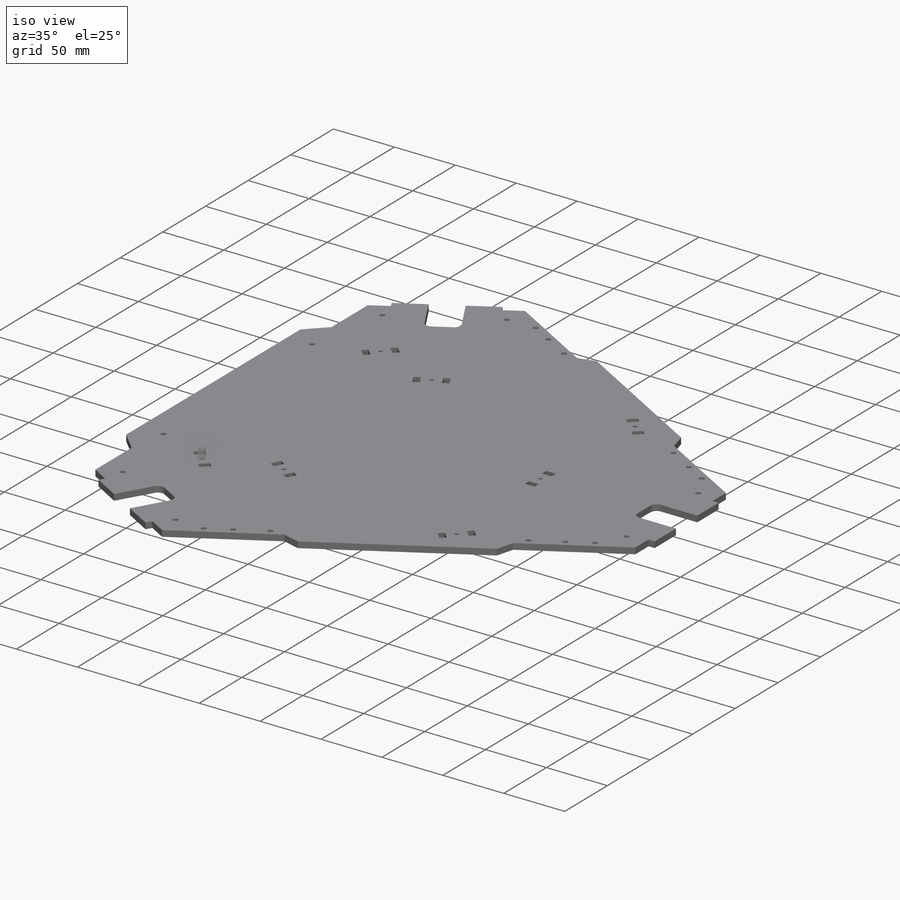
[diagram: iso view]
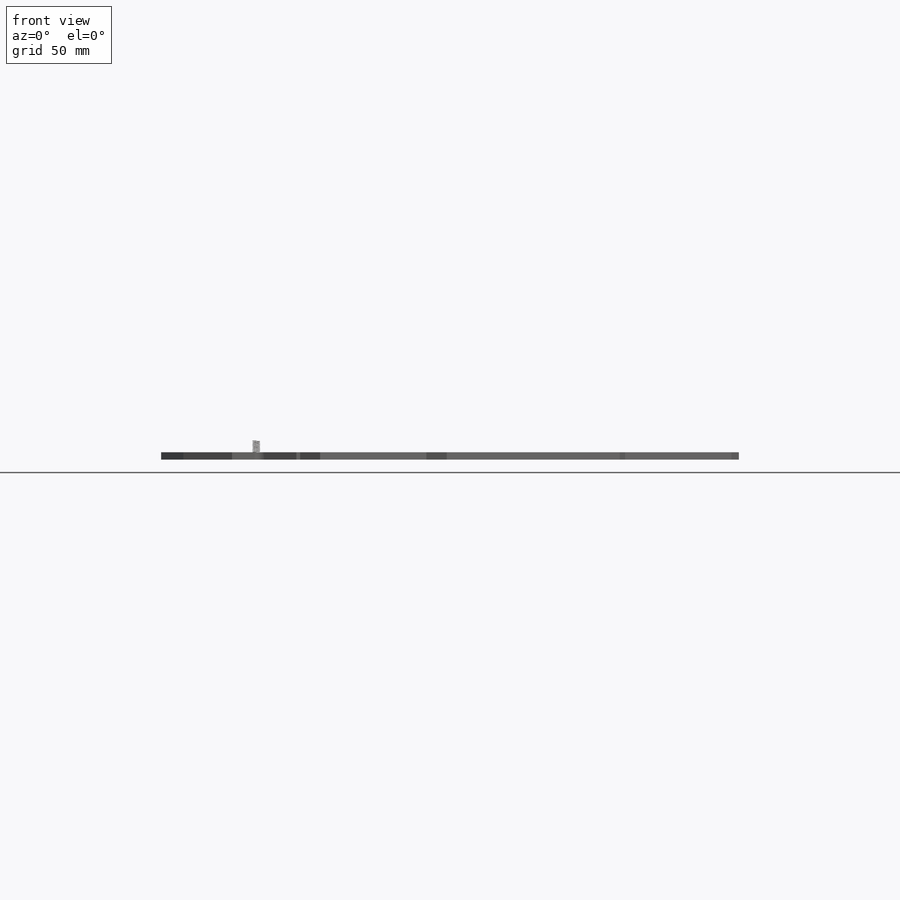
[diagram: front view]
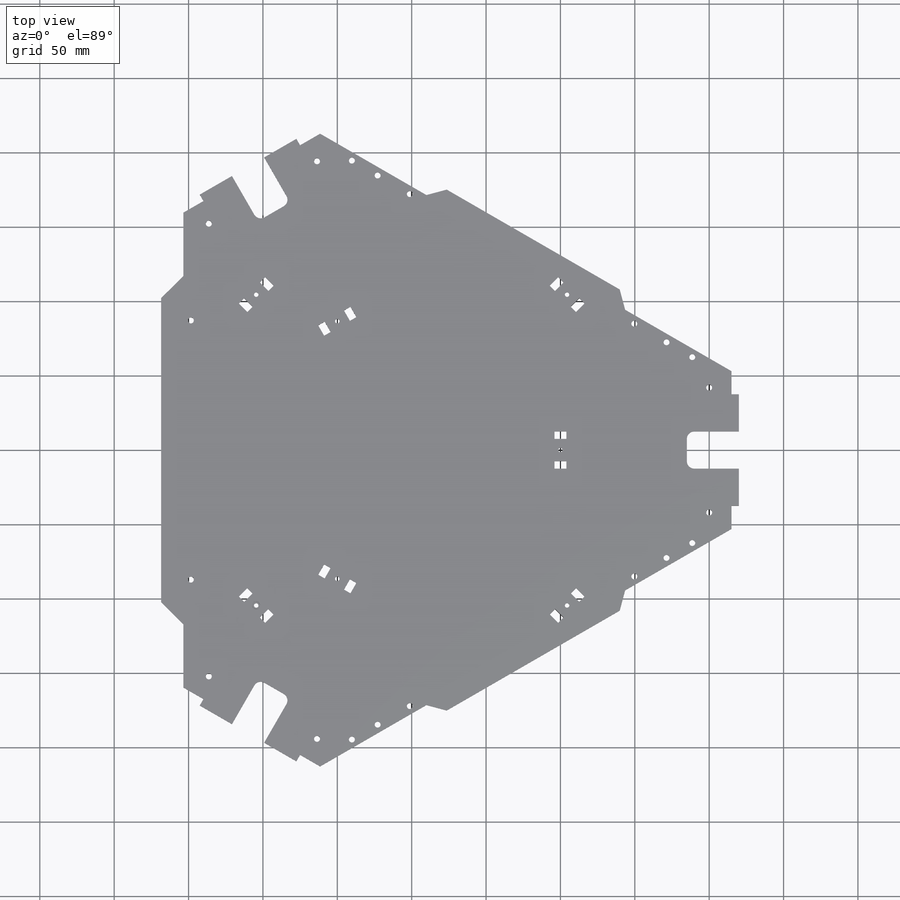
[diagram: top view]
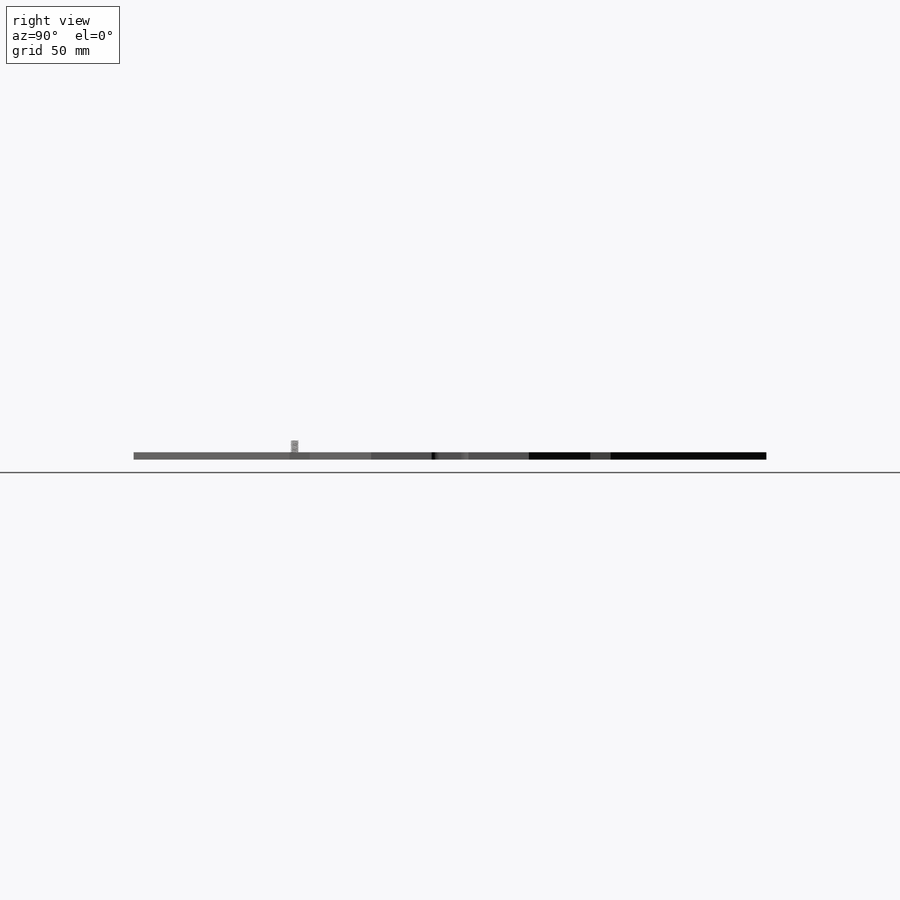
[diagram: right view]
SOLIDWORKS PART (.sldprt)
format: sldprt  version: not decoded by parser v0  size: 1,726,464 bytes
history: native  units: mm
features: sketch x20, extrude x12, cut_extrude x6, mirror x4, chamfer x3, material x1, boolean_combine x1, helix x1, sweep x1, fillet x1 (+16 scaffold rows collapsed; 4 parser-record rows omitted)
feature tree (70):
  scaffold x16  (default folders/planes/origin — collapsed)
  material  "Material <not specified>"
  mirror  "Mirror1"
  mirror  "Mirror2"
  mirror  "Mirror3"
  boolean_combine  "Combine2"
  sketch  "Sketch2"  dims[D4=3.0mm D1=214.0mm D2=214.0mm D3=209.0mm D5=209.0mm]
  extrude  "Boss-Extrude2"  Depth=1.6mm
  parser-record x4  (decoder bookkeeping rows leaked as tree rows — omitted from the tree; the rows remain in map.json)
  sketch  "Sketch13"  dims[D1=30.0mm D2=35.0mm D3=15.0mm]
  extrude  "Boss-Extrude7"  [1 undecoded]
  chamfer  "Chamfer2"  Distance=15mm Angle=45deg
  sketch  "Sketch14"  dims[D1=10.0mm D2=10.0mm]
  extrude  "Boss-Extrude8"  [1 undecoded]
  chamfer  "Chamfer3"  Distance=10mm Angle=45deg
  sketch  "Sketch15"
  extrude  "Boss-Extrude9"  [1 undecoded]
  sketch  "Sketch3"
  cut_extrude  "Cut-Extrude1"  [1 undecoded]
  sketch  "Sketch4"  dims[c1.D1=20.0mm c1.D2=8.0mm c1.D3=214.0mm c2.D3=45.0deg c2.D4=5.0mm]
  cut_extrude  "Cut-Extrude2"  [1 undecoded]
  sketch  "Sketch17"  dims[D1=8.0mm D2=5.0mm D3=20.0mm D4=20.0mm D5=20.0mm]
  cut_extrude  "Cut-Extrude5"  [1 undecoded]
  sketch  "Sketch5"  dims[c1.D5=0.25mm c1.D1=0.25mm c1.D2=2.0mm c1.D3=1.0mm c1.D4=1.0mm c2.D4=45.0deg c2.D6=0.25mm c2.D7=2.0mm c2.D8=5.25mm c2.D9=1.75mm]
  extrude  "Boss-Extrude3"  Depth=0.25mm
  mirror  "Mirror4"
  sketch  "Sketch7"  dims[c1.D1=25.0mm c2.D1=45.0deg c2.D2=6.0mm c2.D3=4.0mm]
  extrude  "Boss-Extrude4"  [1 undecoded]
  sketch  "Sketch8"  dims[D1=5.5mm]
  cut_extrude  "Cut-Extrude3"  Depth=4mm
  sketch  "Sketch9"
  cut_extrude  "Cut-Extrude4"  [1 undecoded]
  sketch  "Sketch10"  dims[D1=0.0mm D2=0.25mm]
  extrude  "Boss-Extrude5"  Depth=0.5mm
  chamfer  "Chamfer1"  Distance=0.25mm Angle=45deg
  sketch  "Sketch11"  dims[D1=204.0mm D2=204.0mm]
  extrude  "Boss-Extrude6"  Depth=2.5mm
  sketch  "Sketch12"  dims[D1=5.0mm]
  helix  "Helix/Spiral1"  Pitch=7.875mm
  sketch  "3DSketch2"  dims[c1.D1=0.25mm c2.D1=0.0mm]
  sweep  "Sweep1"
  sketch  "Sketch18"  dims[c1.D1=220.0mm c1.D2=~173.377278mm c2.D2=120.0deg c2.D3=~85.199899mm c3.D3=120.0deg c3.D4=125.0mm]
  extrude  "Boss-Extrude10"  Depth=5mm
  fillet  "Fillet1"  Radius=25mm
  sketch  "Sketch19"  dims[D1=5.0mm D2=25.0mm D3=15.0mm]
  cut_extrude  "Cut-Extrude6"  [1 undecoded]
  sketch  "Sketch20"  dims[D1=170.0mm D3=20.0mm D2=110.0mm]
  extrude  "Boss-Extrude11"  Depth=2mm
  sketch  "Sketch21"  dims[D1=~167.148985mm]
  extrude  "Boss-Extrude12"  Depth=4mm
  sketch  "Sketch22"
  extrude  "Boss-Extrude13"  Depth=1mm
decode coverage: 30 of 49 modeling features carry decoded parameters
note: ~ marks probable driven/reference dimensions
note: 9 parameter values undecoded
summary: no parameter record found for 9 features
note: suppression state not decoded; provenance and decode notes live in map.json
